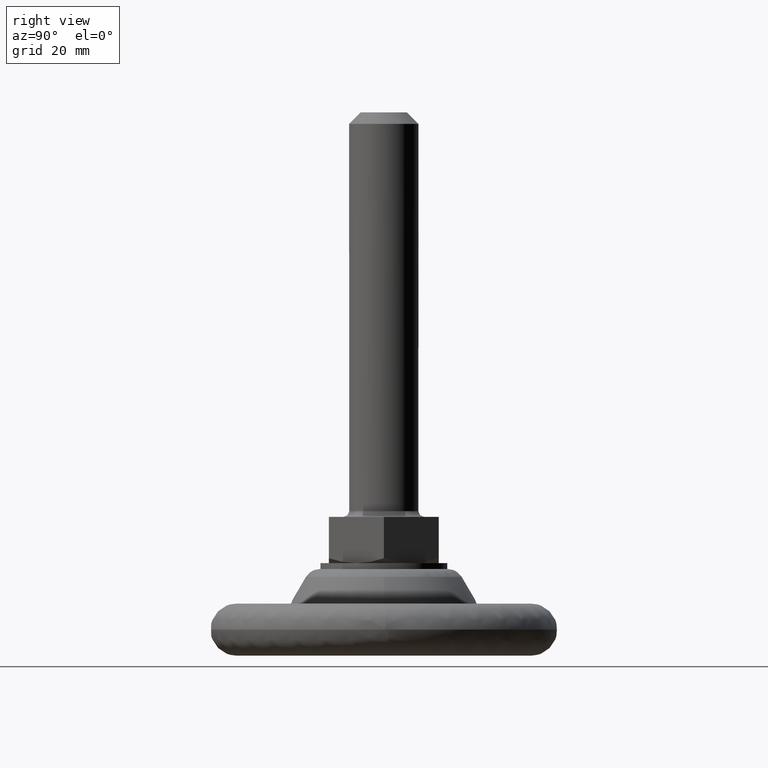
[diagram: clean part render]
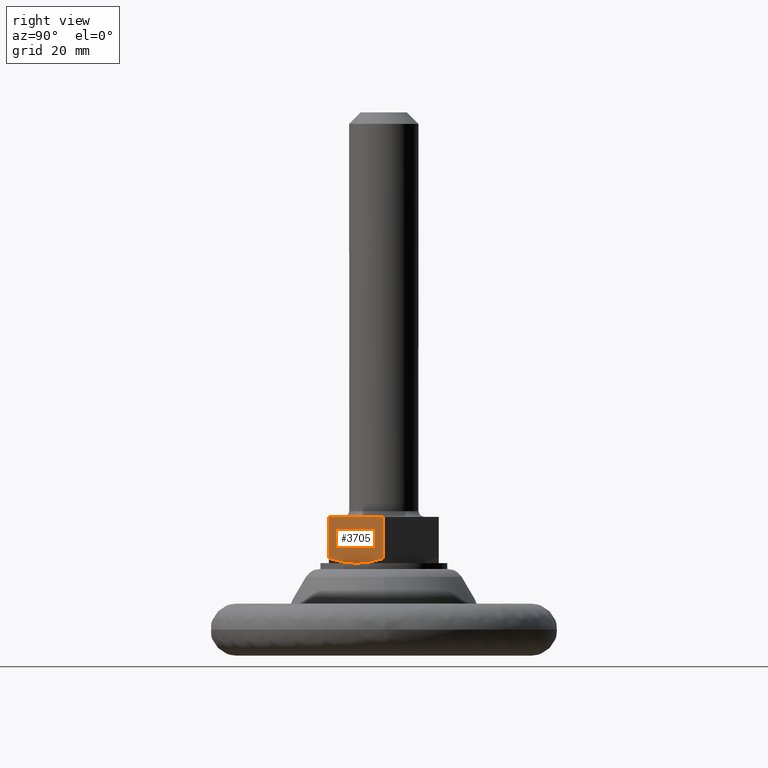
[diagram: same view with one face highlighted and labeled with its STEP entity id]
A machine part, right view. The second image highlights one B-rep face of the part: STEP entity #3705.
In plain terms, the highlighted face is a freeform B-spline surface patch.
Its self-contained STEP definition (entity closure, byte-faithful):
#3582=CARTESIAN_POINT('',(5.484827999999999,-9.500000000000000,24.0));
#3583=VERTEX_POINT('',#3582);
#3589=CARTESIAN_POINT('',(10.969656000000001,0.0,24.0));
#3590=VERTEX_POINT('',#3589);
#3591=CARTESIAN_POINT('',(5.484827999999999,-9.500000000000000,24.0));
#3592=CARTESIAN_POINT('',(10.969656000000001,0.0,24.0));
#3593=QUASI_UNIFORM_CURVE('',1,(#3591,#3592),.UNSPECIFIED.,.F.,.U.);
#3594=EDGE_CURVE('',#3583,#3590,#3593,.T.);
#3638=CARTESIAN_POINT('',(10.969656000000001,1.028602E-015,16.848505903827949));
#3639=VERTEX_POINT('',#3638);
#3640=CARTESIAN_POINT('',(10.969656000000001,0.0,24.0));
#3641=CARTESIAN_POINT('',(10.969656000000001,1.028602E-015,16.848505903827949));
#3642=QUASI_UNIFORM_CURVE('',1,(#3640,#3641),.UNSPECIFIED.,.F.,.U.);
#3643=EDGE_CURVE('',#3590,#3639,#3642,.T.);
#3661=CARTESIAN_POINT('',(11.243623147969330,0.474524981587161,15.600400015505549));
#3662=CARTESIAN_POINT('',(5.210860704916110,-9.974525236397012,15.600400015505549));
#3663=CARTESIAN_POINT('',(11.243623147969330,0.474524981587161,24.399600199071170));
#3664=CARTESIAN_POINT('',(5.210860704916110,-9.974525236397012,24.399600199071170));
#3665=B_SPLINE_SURFACE_WITH_KNOTS('',1,1,((#3661,#3663),(#3662,#3664)),.UNSPECIFIED.,.F.,.F.,.U.,(2,2),(2,2),(0.0,12.065524155720240),(0.0,8.799200183565620),.UNSPECIFIED.);
#3666=CARTESIAN_POINT('',(8.227241667976061,-4.750000575082290,16.0));
#3667=VERTEX_POINT('',#3666);
#3668=CARTESIAN_POINT('',(10.969656000000001,1.028602E-015,16.848505903827949));
#3669=CARTESIAN_POINT('',(10.521871858458010,-0.775584821374324,16.589977609169470));
#3670=CARTESIAN_POINT('',(10.070823002984071,-1.556824292694568,16.376903438440969));
#3671=CARTESIAN_POINT('',(9.387194516085677,-2.740903469933062,16.155520728384939));
#3672=CARTESIAN_POINT('',(9.158139666630277,-3.137638074888091,16.098137176732749));
#3673=CARTESIAN_POINT('',(8.697362348870943,-3.935727735806118,16.020510931790511));
#3674=CARTESIAN_POINT('',(8.465637575453489,-4.337086784342524,16.000300332251289));
#3675=CARTESIAN_POINT('',(8.230735703018056,-4.743948729354591,16.000001061633359));
#3676=CARTESIAN_POINT('',(8.228988749892714,-4.746974540681902,15.999999957284681));
#3677=CARTESIAN_POINT('',(8.227241667884840,-4.750000575240287,15.999999973816520));
#3678=B_SPLINE_CURVE_WITH_KNOTS('',3,(#3668,#3669,#3670,#3671,#3672,#3673,#3674,#3675,#3676,#3677),.UNSPECIFIED.,.F.,.U.,(4,2,2,2,4),(0.0,0.250000000000000,0.375000000000000,0.500000000000000,0.500936512232918),.UNSPECIFIED.);
#3679=EDGE_CURVE('',#3639,#3667,#3678,.T.);
#3680=ORIENTED_EDGE('',*,*,#3679,.F.);
#3681=ORIENTED_EDGE('',*,*,#3643,.F.);
#3682=ORIENTED_EDGE('',*,*,#3594,.F.);
#3683=CARTESIAN_POINT('',(5.484827999999999,-9.500000000000000,16.848505520439751));
#3684=VERTEX_POINT('',#3683);
#3685=CARTESIAN_POINT('',(5.484827999999999,-9.500000000000000,24.0));
#3686=CARTESIAN_POINT('',(5.484827999999999,-9.500000000000000,16.848505520439751));
#3687=QUASI_UNIFORM_CURVE('',1,(#3685,#3686),.UNSPECIFIED.,.F.,.U.);
#3688=EDGE_CURVE('',#3583,#3684,#3687,.T.);
#3689=ORIENTED_EDGE('',*,*,#3688,.T.);
#3690=CARTESIAN_POINT('',(8.227241667976061,-4.750000575082290,16.0));
#3691=CARTESIAN_POINT('',(8.112393769331616,-4.948922954621303,16.000001060574110));
#3692=CARTESIAN_POINT('',(7.996988924310355,-5.148809993504192,16.004845865201620));
#3693=CARTESIAN_POINT('',(7.765463021044058,-5.549824588862488,16.024220317108220));
#3694=CARTESIAN_POINT('',(7.649231454491200,-5.751143551326232,16.038873603843118));
#3695=CARTESIAN_POINT('',(7.301699859352029,-6.353085882757984,16.096877000075519));
#3696=CARTESIAN_POINT('',(7.071565654548529,-6.751689985864452,16.154303478483211));
#3697=CARTESIAN_POINT('',(6.385260264158167,-7.940405695583785,16.376053543543339));
#3698=CARTESIAN_POINT('',(5.933170337784191,-8.723448354451627,16.589654998039300));
#3699=CARTESIAN_POINT('',(5.484827999999985,-9.500000000000027,16.848505520439581));
#3700=B_SPLINE_CURVE_WITH_KNOTS('',3,(#3690,#3691,#3692,#3693,#3694,#3695,#3696,#3697,#3698,#3699),.UNSPECIFIED.,.F.,.U.,(4,2,2,2,4),(0.500936512261460,0.562500000000000,0.625000000000000,0.750000000000000,1.0),.UNSPECIFIED.);
#3701=EDGE_CURVE('',#3667,#3684,#3700,.T.);
#3702=ORIENTED_EDGE('',*,*,#3701,.F.);
#3703=EDGE_LOOP('',(#3680,#3681,#3682,#3689,#3702));
#3704=FACE_OUTER_BOUND('',#3703,.T.);
#3705=ADVANCED_FACE('',(#3704),#3665,.F.);